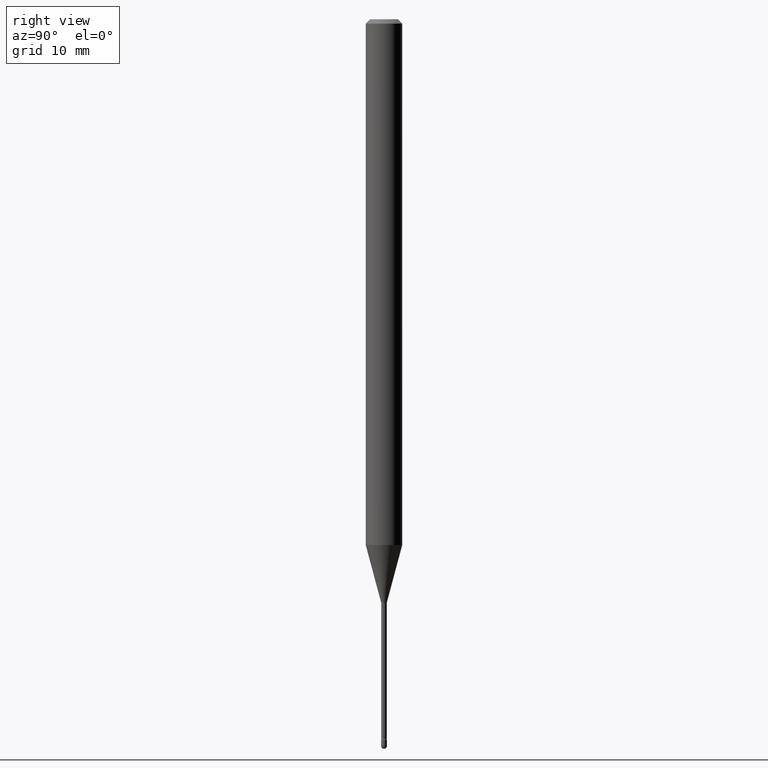
[diagram: clean part render]
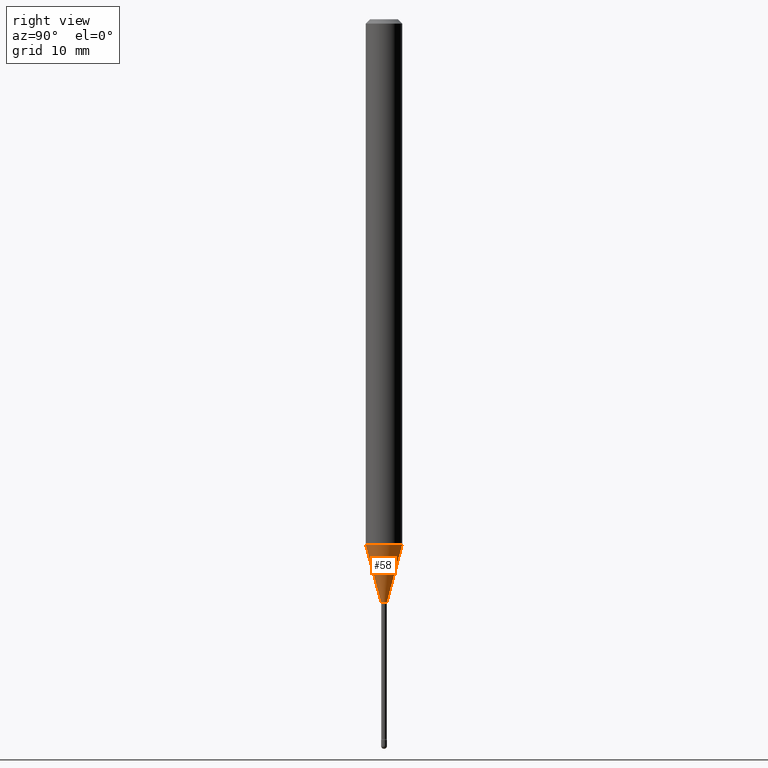
[diagram: same view with one face highlighted and labeled with its STEP entity id]
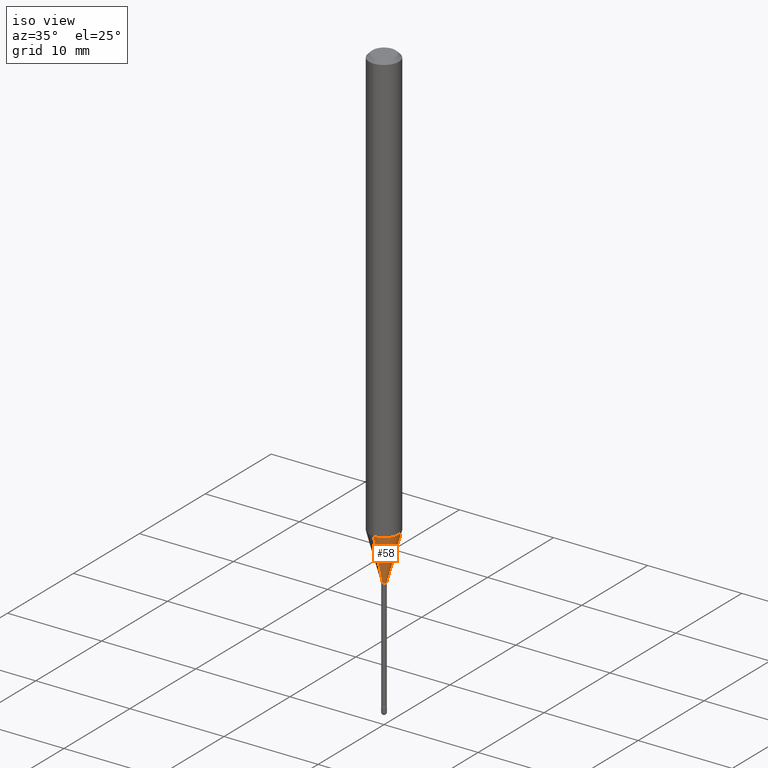
[diagram: same view with one face highlighted and labeled with its STEP entity id]
A machine part, right view. The second image highlights one B-rep face of the part: STEP entity #58.
A second angle (iso view) of the same face is appended — the face is thin or edge-on in the first view.
In plain terms, the highlighted conical surface has half-angle 15 deg.
Its self-contained STEP definition (entity closure, byte-faithful):
#31 = CARTESIAN_POINT ( 'NONE',  ( 4.886141256379125747E-29, -6.976491182939862603E-15, -1.998092501787273045 ) ) ;
#42 = VERTEX_POINT ( 'NONE', #80 ) ;
#58 = ADVANCED_FACE ( 'NONE', ( #418 ), #407, .T. ) ;
#70 = AXIS2_PLACEMENT_3D ( 'NONE', #505, #112, #291 ) ;
#80 = CARTESIAN_POINT ( 'NONE',  ( 4.440892098501064966E-16, 0.06249999999999370642, -1.801828102118093300 ) ) ;
#93 = CIRCLE ( 'NONE', #534, 0.06250000000000000000 ) ;
#94 = ORIENTED_EDGE ( 'NONE', *, *, #191, .T. ) ;
#111 = LINE ( 'NONE', #501, #524 ) ;
#112 = DIRECTION ( 'NONE',  ( -2.445402929047840730E-29, 3.491575678653247017E-15, 1.000000000000000000 ) ) ;
#137 = DIRECTION ( 'NONE',  ( -2.445402929047840730E-29, 3.491575678653247017E-15, 1.000000000000000000 ) ) ;
#161 = CIRCLE ( 'NONE', #70, 0.009911112605663983943 ) ;
#171 = AXIS2_PLACEMENT_3D ( 'NONE', #31, #137, #440 ) ;
#184 = LINE ( 'NONE', #260, #367 ) ;
#191 = EDGE_CURVE ( 'NONE', #312, #537, #161, .T. ) ;
#210 = VERTEX_POINT ( 'NONE', #347 ) ;
#227 = ORIENTED_EDGE ( 'NONE', *, *, #244, .T. ) ;
#244 = EDGE_CURVE ( 'NONE', #537, #42, #184, .T. ) ;
#260 = CARTESIAN_POINT ( 'NONE',  ( 7.042269065259786950E-17, 0.009911112605657006885, -1.998092501787273045 ) ) ;
#262 = CARTESIAN_POINT ( 'NONE',  ( -6.920892941964860523E-17, -0.009911112605670961001, -1.998092501787273045 ) ) ;
#287 = DIRECTION ( 'NONE',  ( -2.445402929047840730E-29, 3.491575678653247017E-15, 1.000000000000000000 ) ) ;
#290 = DIRECTION ( 'NONE',  ( -6.982962677686265922E-15, -1.000000000000000000, 4.370956789862821150E-15 ) ) ;
#291 = DIRECTION ( 'NONE',  ( -6.982962677686264344E-15, -1.000000000000000000, 0.000000000000000000 ) ) ;
#312 = VERTEX_POINT ( 'NONE', #262 ) ;
#346 = CARTESIAN_POINT ( 'NONE',  ( 2.572559502513523864E-16, 0.009911112605657006885, -1.998092501787273045 ) ) ;
#347 = CARTESIAN_POINT ( 'NONE',  ( -4.364351673553476411E-16, -0.06250000000000630052, -1.801828102118092856 ) ) ;
#348 = ORIENTED_EDGE ( 'NONE', *, *, #400, .F. ) ;
#365 = DIRECTION ( 'NONE',  ( -1.807323732225328562E-15, -0.2588190451025179639, 0.9659258262890690894 ) ) ;
#367 = VECTOR ( 'NONE', #476, 39.37007874015748854 ) ;
#400 = EDGE_CURVE ( 'NONE', #210, #42, #93, .T. ) ;
#407 = CONICAL_SURFACE ( 'NONE', #171, 0.009911112605663983943, 0.2617993877991500740 ) ;
#418 = FACE_OUTER_BOUND ( 'NONE', #527, .T. ) ;
#440 = DIRECTION ( 'NONE',  ( -6.982962677686264344E-15, -1.000000000000000000, 0.000000000000000000 ) ) ;
#451 = CARTESIAN_POINT ( 'NONE',  ( 4.406195718560296677E-29, -6.291219178469473223E-15, -1.801828102118093078 ) ) ;
#475 = ORIENTED_EDGE ( 'NONE', *, *, #479, .F. ) ;
#476 = DIRECTION ( 'NONE',  ( 1.839019923739598738E-15, 0.2588190451025247363, 0.9659258262890673130 ) ) ;
#479 = EDGE_CURVE ( 'NONE', #312, #210, #111, .T. ) ;
#501 = CARTESIAN_POINT ( 'NONE',  ( -6.920892941964860523E-17, -0.009911112605670961001, -1.998092501787273045 ) ) ;
#505 = CARTESIAN_POINT ( 'NONE',  ( 4.886141256379125747E-29, -6.976491182939862603E-15, -1.998092501787273045 ) ) ;
#524 = VECTOR ( 'NONE', #365, 39.37007874015748854 ) ;
#527 = EDGE_LOOP ( 'NONE', ( #94, #227, #348, #475 ) ) ;
#534 = AXIS2_PLACEMENT_3D ( 'NONE', #451, #287, #290 ) ;
#537 = VERTEX_POINT ( 'NONE', #346 ) ;